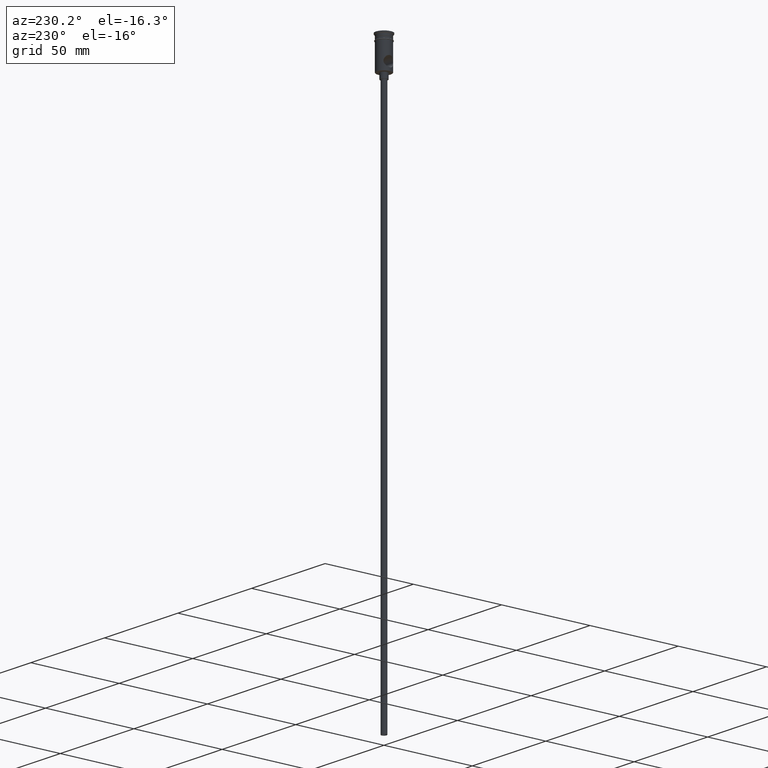
[diagram: clean part render]
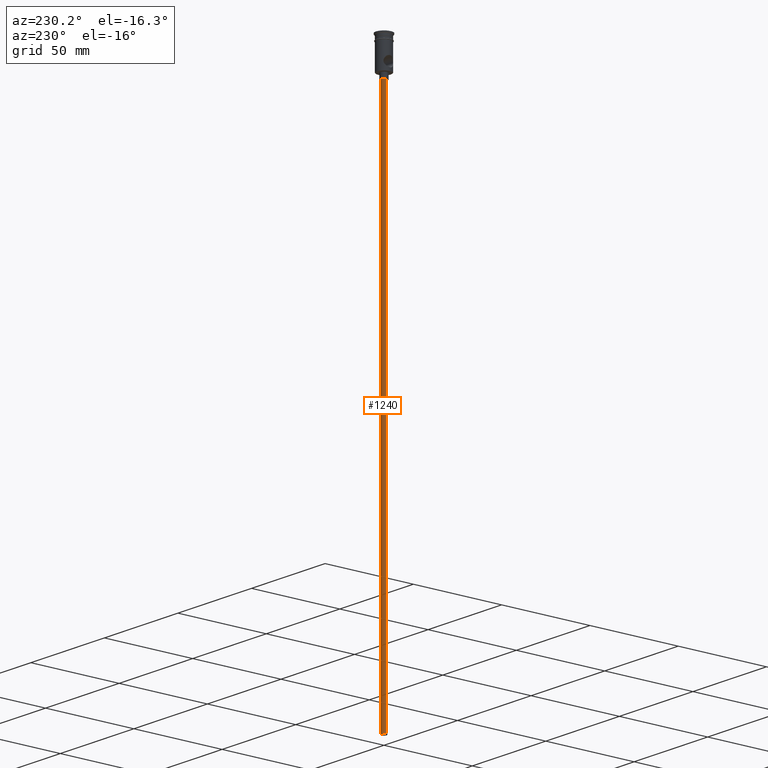
[diagram: same view with one face highlighted and labeled with its STEP entity id]
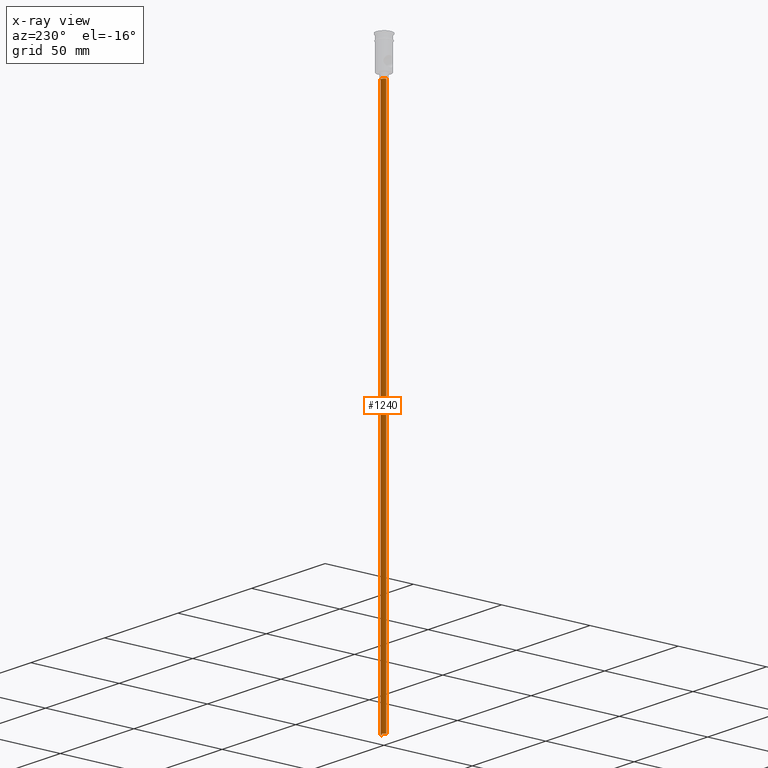
[diagram: x-ray of the same camera — body ghosted, the highlighted face saturated]
A machine part, auxiliary view. The second image highlights one B-rep face of the part: STEP entity #1240.
The next image is the same camera in x-ray: the body ghosted, the highlighted face saturated — about 0% of this face is hidden behind the body in this view.
In plain terms, the highlighted cylindrical surface (edge-blend (fillet) strip) has radius 1.5 mm, axis along (-0, -0, 1).
Its self-contained STEP definition (entity closure, byte-faithful):
#20 = DIRECTION ( 'NONE',  ( 1.000000000000000000, 0.000000000000000000, 0.000000000000000000 ) ) ;
#33 = DIRECTION ( 'NONE',  ( 0.000000000000000000, 0.000000000000000000, -1.000000000000000000 ) ) ;
#53 = DIRECTION ( 'NONE',  ( -1.000000000000000000, 0.000000000000000000, 0.000000000000000000 ) ) ;
#54 = CIRCLE ( 'NONE', #539, 1.500000000000000222 ) ;
#84 = ORIENTED_EDGE ( 'NONE', *, *, #238, .T. ) ;
#138 = CARTESIAN_POINT ( 'NONE',  ( 1.500000000000000222, 0.000000000000000000, -20.99999999999999645 ) ) ;
#139 = EDGE_CURVE ( 'NONE', #341, #865, #1375, .T. ) ;
#140 = CYLINDRICAL_SURFACE ( 'NONE', #728, 1.500000000000000222 ) ;
#142 = AXIS2_PLACEMENT_3D ( 'NONE', #1302, #33, #569 ) ;
#177 = VERTEX_POINT ( 'NONE', #822 ) ;
#216 = EDGE_LOOP ( 'NONE', ( #660, #1177, #84, #1360 ) ) ;
#238 = EDGE_CURVE ( 'NONE', #387, #865, #54, .T. ) ;
#249 = DIRECTION ( 'NONE',  ( -0.000000000000000000, -0.000000000000000000, 1.000000000000000000 ) ) ;
#295 = CARTESIAN_POINT ( 'NONE',  ( 0.000000000000000000, 0.000000000000000000, -20.99999999999999645 ) ) ;
#302 = DIRECTION ( 'NONE',  ( -0.000000000000000000, -0.000000000000000000, 1.000000000000000000 ) ) ;
#332 = FACE_OUTER_BOUND ( 'NONE', #216, .T. ) ;
#341 = VERTEX_POINT ( 'NONE', #836 ) ;
#387 = VERTEX_POINT ( 'NONE', #512 ) ;
#461 = VECTOR ( 'NONE', #1134, 1000.000000000000000 ) ;
#512 = CARTESIAN_POINT ( 'NONE',  ( -1.500000000000000222, 1.836970198721030181E-16, -20.99999999999999645 ) ) ;
#539 = AXIS2_PLACEMENT_3D ( 'NONE', #295, #1406, #53 ) ;
#557 = CIRCLE ( 'NONE', #142, 1.500000000000000222 ) ;
#569 = DIRECTION ( 'NONE',  ( -1.000000000000000000, 0.000000000000000000, 0.000000000000000000 ) ) ;
#660 = ORIENTED_EDGE ( 'NONE', *, *, #797, .F. ) ;
#728 = AXIS2_PLACEMENT_3D ( 'NONE', #1347, #249, #20 ) ;
#786 = EDGE_CURVE ( 'NONE', #177, #387, #1294, .T. ) ;
#797 = EDGE_CURVE ( 'NONE', #177, #341, #557, .T. ) ;
#822 = CARTESIAN_POINT ( 'NONE',  ( -1.500000000000000222, 1.836970198721030181E-16, -318.0000000000000000 ) ) ;
#836 = CARTESIAN_POINT ( 'NONE',  ( 1.500000000000000222, 0.000000000000000000, -318.0000000000000000 ) ) ;
#853 = CARTESIAN_POINT ( 'NONE',  ( -1.500000000000000222, 1.836970198721030181E-16, -318.0000000000000000 ) ) ;
#865 = VERTEX_POINT ( 'NONE', #138 ) ;
#1134 = DIRECTION ( 'NONE',  ( -0.000000000000000000, -0.000000000000000000, 1.000000000000000000 ) ) ;
#1170 = VECTOR ( 'NONE', #302, 1000.000000000000000 ) ;
#1177 = ORIENTED_EDGE ( 'NONE', *, *, #786, .T. ) ;
#1240 = ADVANCED_FACE ( 'NONE', ( #332 ), #140, .T. ) ;
#1264 = CARTESIAN_POINT ( 'NONE',  ( 1.500000000000000222, 0.000000000000000000, -318.0000000000000000 ) ) ;
#1294 = LINE ( 'NONE', #853, #1170 ) ;
#1302 = CARTESIAN_POINT ( 'NONE',  ( 0.000000000000000000, 0.000000000000000000, -318.0000000000000000 ) ) ;
#1347 = CARTESIAN_POINT ( 'NONE',  ( 0.000000000000000000, 0.000000000000000000, -318.0000000000000000 ) ) ;
#1360 = ORIENTED_EDGE ( 'NONE', *, *, #139, .F. ) ;
#1375 = LINE ( 'NONE', #1264, #461 ) ;
#1406 = DIRECTION ( 'NONE',  ( 0.000000000000000000, 0.000000000000000000, -1.000000000000000000 ) ) ;